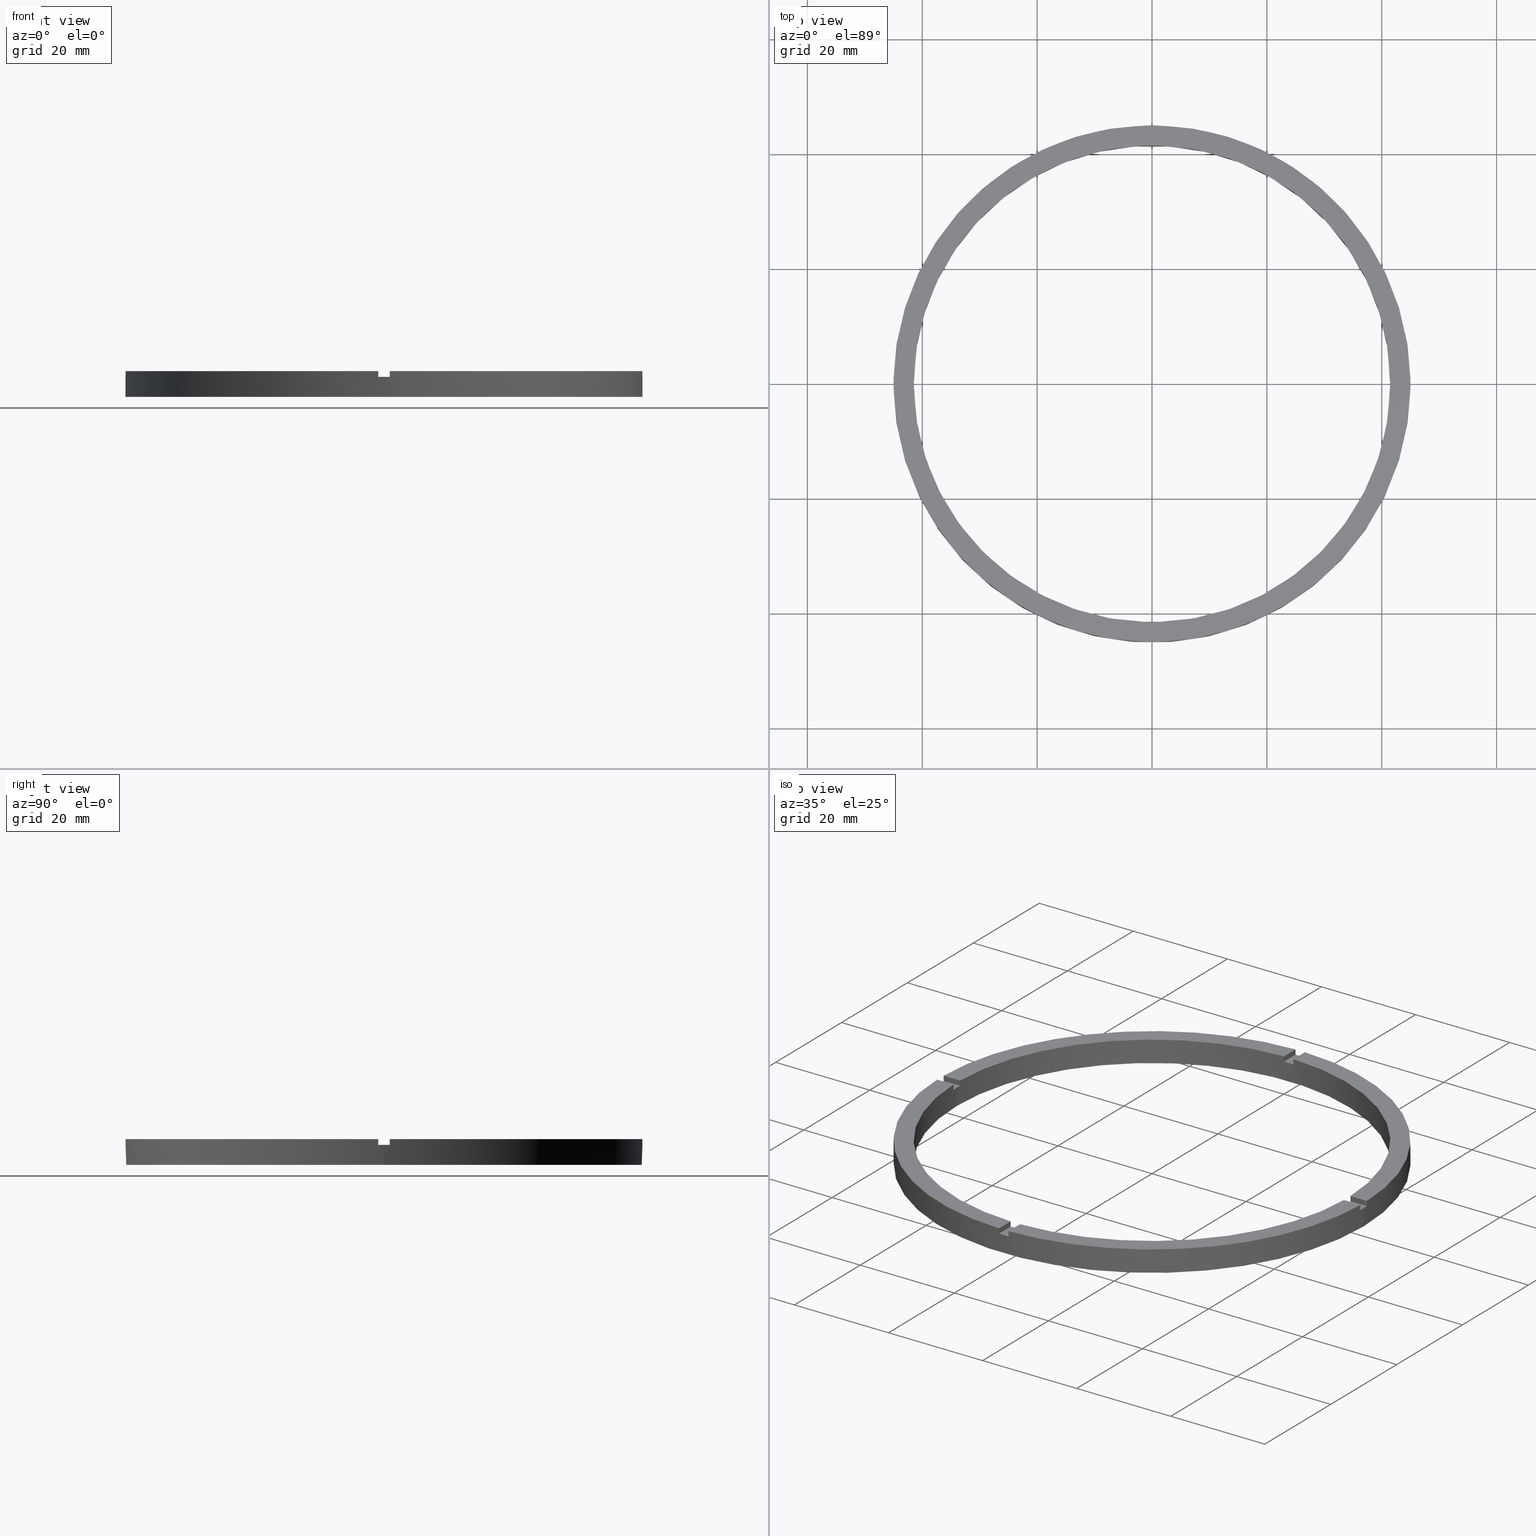
[diagram: canonical four-view strip — front | top / right | iso, engineering-drawing reading convention]
A machine part, canonical four-view strip (front | top / right | iso — engineering-drawing reading convention). The complete STEP part file that produces these views, byte-faithful:
ISO-10303-21;
HEADER;
FILE_DESCRIPTION (( 'STEP AP203' ),
    '1' );
FILE_NAME ('514185.step',
    '2024-12-26T02:45:52',
    ( 'MSI' ),
    ( '' ),
    'SwSTEP 2.0',
    'SolidWorks 2020',
    '' );
FILE_SCHEMA (( 'CONFIG_CONTROL_DESIGN' ));
ENDSEC;

DATA;
#1 = DIRECTION ( 'NONE',  ( 0.000000000000000000, 0.000000000000000000, 1.000000000000000000 ) ) ;
#2 = VECTOR ( 'NONE', #345, 1000.000000000000000 ) ;
#3 = CARTESIAN_POINT ( 'NONE',  ( 34.99999999999999289, 0.9999999999998432365, 3.499999999999999556 ) ) ;
#4 = VECTOR ( 'NONE', #169, 1000.000000000000000 ) ;
#5 = PRODUCT_DEFINITION_FORMATION_WITH_SPECIFIED_SOURCE ( '�κ�', '', #341, .NOT_KNOWN. ) ;
#6 = AXIS2_PLACEMENT_3D ( 'NONE', #40, #591, #525 ) ;
#7 = DIRECTION ( 'NONE',  ( 0.000000000000000000, 0.000000000000000000, 1.000000000000000000 ) ) ;
#8 = VECTOR ( 'NONE', #59, 1000.000000000000000 ) ;
#9 = DIRECTION ( 'NONE',  ( 0.000000000000000000, 0.000000000000000000, 1.000000000000000000 ) ) ;
#10 = VECTOR ( 'NONE', #347, 1000.000000000000000 ) ;
#11 = DESIGN_CONTEXT ( 'detailed design', #247, 'design' ) ;
#12 = LINE ( 'NONE', #255, #293 ) ;
#13 = CARTESIAN_POINT ( 'NONE',  ( 0.9999999999998406830, -35.00000000000018474, 3.499999999999999556 ) ) ;
#14 = PERSON_AND_ORGANIZATION ( #421, #331 ) ;
#15 = APPROVAL_PERSON_ORGANIZATION ( #14, #655, #240 ) ;
#16 = CALENDAR_DATE ( 2024, 26, 12 ) ;
#17 = DIRECTION ( 'NONE',  ( -0.000000000000000000, -0.000000000000000000, -1.000000000000000000 ) ) ;
#18 = PRODUCT_DEFINITION_SHAPE ( 'NONE', 'NONE',  #187 ) ;
#19 = AXIS2_PLACEMENT_3D ( 'NONE', #534, #611, #769 ) ;
#20 = APPROVAL_DATE_TIME ( #565, #463 ) ;
#21 = CARTESIAN_POINT ( 'NONE',  ( 0.000000000000000000, 0.000000000000000000, 4.500000000000000000 ) ) ;
#22 = PERSON_AND_ORGANIZATION ( #421, #331 ) ;
#23 = DIRECTION ( 'NONE',  ( 1.000000000000000000, 6.505213034913025371E-17, 0.000000000000000000 ) ) ;
#24 = AXIS2_PLACEMENT_3D ( 'NONE', #52, #599, #83 ) ;
#25 = CARTESIAN_POINT ( 'NONE',  ( -41.48795005781799716, -1.000000000000029088, 4.500000000000000000 ) ) ;
#26 = DIRECTION ( 'NONE',  ( 1.000000000000000000, 0.000000000000000000, 0.000000000000000000 ) ) ;
#27 = EDGE_CURVE ( 'NONE', #653, #674, #391, .T. ) ;
#28 = LOCAL_TIME ( 10, 45, 52.00000000000000000, #559 ) ;
#29 = DATE_AND_TIME ( #567, #28 ) ;
#30 = ADVANCED_FACE ( 'NONE', ( #635 ), #119, .T. ) ;
#31 = AXIS2_PLACEMENT_3D ( 'NONE', #399, #744, #630 ) ;
#32 = EDGE_CURVE ( 'NONE', #206, #471, #109, .T. ) ;
#33 = CALENDAR_DATE ( 2024, 26, 12 ) ;
#34 = DIRECTION ( 'NONE',  ( 1.000000000000000000, 0.000000000000000000, -0.000000000000000000 ) ) ;
#35 = CARTESIAN_POINT ( 'NONE',  ( -41.48795005781799716, -1.000000000000029088, 3.499999999999999556 ) ) ;
#36 = PERSON_AND_ORGANIZATION ( #421, #331 ) ;
#37 = ADVANCED_FACE ( 'NONE', ( #113 ), #605, .T. ) ;
#38 = LOCAL_TIME ( 10, 45, 52.00000000000000000, #561 ) ;
#39 = FACE_OUTER_BOUND ( 'NONE', #494, .T. ) ;
#40 = CARTESIAN_POINT ( 'NONE',  ( 0.000000000000000000, 0.000000000000000000, 4.500000000000000000 ) ) ;
#41 = CARTESIAN_POINT ( 'NONE',  ( 0.000000000000000000, 0.000000000000000000, 4.500000000000000000 ) ) ;
#42 = APPROVAL_DATE_TIME ( #299, #655 ) ;
#43 = MECHANICAL_CONTEXT ( 'NONE', #677, 'mechanical' ) ;
#44 = EDGE_CURVE ( 'NONE', #484, #700, #634, .T. ) ;
#45 = AXIS2_PLACEMENT_3D ( 'NONE', #757, #221, #305 ) ;
#46 = PERSON_AND_ORGANIZATION_ROLE ( 'design_supplier' ) ;
#47 = CARTESIAN_POINT ( 'NONE',  ( -44.98888751680797071, 0.9999999999999703570, 4.500000000000000000 ) ) ;
#48 =( GEOMETRIC_REPRESENTATION_CONTEXT ( 3 ) GLOBAL_UNCERTAINTY_ASSIGNED_CONTEXT ( ( #606 ) ) GLOBAL_UNIT_ASSIGNED_CONTEXT ( ( #343, #304, #528 ) ) REPRESENTATION_CONTEXT ( 'NONE', 'WORKASPACE' ) );
#49 = CARTESIAN_POINT ( 'NONE',  ( 41.50000000000000000, 5.082284216461515748E-15, 0.000000000000000000 ) ) ;
#50 = DIRECTION ( 'NONE',  ( 0.000000000000000000, 0.000000000000000000, 1.000000000000000000 ) ) ;
#51 = CARTESIAN_POINT ( 'NONE',  ( 0.000000000000000000, 0.000000000000000000, 4.500000000000000000 ) ) ;
#52 = CARTESIAN_POINT ( 'NONE',  ( 0.000000000000000000, 0.000000000000000000, 0.000000000000000000 ) ) ;
#53 = EDGE_CURVE ( 'NONE', #481, #470, #385, .T. ) ;
#54 = CARTESIAN_POINT ( 'NONE',  ( 0.000000000000000000, 0.000000000000000000, 3.499999999999999556 ) ) ;
#55 = APPROVAL_PERSON_ORGANIZATION ( #333, #142, #540 ) ;
#56 = CARTESIAN_POINT ( 'NONE',  ( 0.000000000000000000, 0.000000000000000000, 4.500000000000000000 ) ) ;
#57 = DATE_AND_TIME ( #582, #580 ) ;
#58 = CARTESIAN_POINT ( 'NONE',  ( -1.000000000000159428, -35.00000000000018474, 3.499999999999999556 ) ) ;
#59 = DIRECTION ( 'NONE',  ( -0.000000000000000000, -0.000000000000000000, -1.000000000000000000 ) ) ;
#60 = EDGE_CURVE ( 'NONE', #186, #653, #117, .T. ) ;
#61 = DIRECTION ( 'NONE',  ( -0.000000000000000000, -0.000000000000000000, -1.000000000000000000 ) ) ;
#62 = CARTESIAN_POINT ( 'NONE',  ( -1.000000000000026201, 35.00000000000000000, 3.499999999999999556 ) ) ;
#63 = PLANE ( 'NONE',  #376 ) ;
#64 = DIRECTION ( 'NONE',  ( -1.000000000000000000, -1.951563910473907735E-16, 0.000000000000000000 ) ) ;
#65 = EDGE_CURVE ( 'NONE', #184, #417, #131, .T. ) ;
#66 = ADVANCED_FACE ( 'NONE', ( #652 ), #600, .T. ) ;
#67 = EDGE_CURVE ( 'NONE', #481, #445, #633, .T. ) ;
#68 = CARTESIAN_POINT ( 'NONE',  ( 0.000000000000000000, 0.000000000000000000, 3.499999999999999556 ) ) ;
#69 = ADVANCED_BREP_SHAPE_REPRESENTATION ( '514185', ( #354, #659 ), #48 ) ;
#70 = DIRECTION ( 'NONE',  ( 0.000000000000000000, 0.000000000000000000, 1.000000000000000000 ) ) ;
#71 = CC_DESIGN_PERSON_AND_ORGANIZATION_ASSIGNMENT ( #307, #133, ( #602 ) ) ;
#72 = EDGE_CURVE ( 'NONE', #375, #186, #664, .T. ) ;
#73 = PLANE ( 'NONE',  #498 ) ;
#74 = CARTESIAN_POINT ( 'NONE',  ( -1.000000000000158096, -44.98888751680797071, 4.500000000000000000 ) ) ;
#75 = DIRECTION ( 'NONE',  ( -0.000000000000000000, -0.000000000000000000, -1.000000000000000000 ) ) ;
#76 = DIRECTION ( 'NONE',  ( 0.000000000000000000, 0.000000000000000000, 1.000000000000000000 ) ) ;
#77 = EDGE_CURVE ( 'NONE', #733, #484, #153, .T. ) ;
#78 = CARTESIAN_POINT ( 'NONE',  ( 34.99999999999999289, 0.9999999999998432365, 3.499999999999999556 ) ) ;
#79 = DIRECTION ( 'NONE',  ( 0.000000000000000000, -0.000000000000000000, 1.000000000000000000 ) ) ;
#80 = CARTESIAN_POINT ( 'NONE',  ( 45.00000000000000711, 5.510910596163090344E-15, 4.500000000000000000 ) ) ;
#81 = DIRECTION ( 'NONE',  ( 1.000000000000000000, 0.000000000000000000, 0.000000000000000000 ) ) ;
#82 = EDGE_CURVE ( 'NONE', #438, #723, #150, .T. ) ;
#83 = DIRECTION ( 'NONE',  ( 1.000000000000000000, 0.000000000000000000, 0.000000000000000000 ) ) ;
#84 = PERSON_AND_ORGANIZATION_ROLE ( 'design_owner' ) ;
#85 = CARTESIAN_POINT ( 'NONE',  ( 0.9999999999999737987, 44.98888751680797071, 4.500000000000000000 ) ) ;
#86 = AXIS2_PLACEMENT_3D ( 'NONE', #78, #224, #340 ) ;
#87 = CARTESIAN_POINT ( 'NONE',  ( -1.000000000000158540, -41.48795005781799006, 4.500000000000000000 ) ) ;
#88 = AXIS2_PLACEMENT_3D ( 'NONE', #21, #70, #571 ) ;
#89 = EDGE_CURVE ( 'NONE', #707, #726, #382, .T. ) ;
#90 = DIRECTION ( 'NONE',  ( 1.000000000000000000, 0.000000000000000000, 0.000000000000000000 ) ) ;
#91 = CARTESIAN_POINT ( 'NONE',  ( 0.9999999999999737987, 44.98888751680797071, 4.500000000000000000 ) ) ;
#92 = ADVANCED_FACE ( 'NONE', ( #151 ), #409, .F. ) ;
#93 = DIRECTION ( 'NONE',  ( 0.000000000000000000, 0.000000000000000000, 1.000000000000000000 ) ) ;
#94 = CARTESIAN_POINT ( 'NONE',  ( -1.000000000000026201, 41.48795005781799716, 3.499999999999999556 ) ) ;
#95 = PLANE ( 'NONE',  #110 ) ;
#96 = DIRECTION ( 'NONE',  ( 1.000000000000000000, 0.000000000000000000, 0.000000000000000000 ) ) ;
#97 = DIRECTION ( 'NONE',  ( 0.000000000000000000, 0.000000000000000000, 1.000000000000000000 ) ) ;
#98 = DIRECTION ( 'NONE',  ( -0.000000000000000000, 0.000000000000000000, 1.000000000000000000 ) ) ;
#99 = ADVANCED_FACE ( 'NONE', ( #415 ), #668, .T. ) ;
#100 = EDGE_LOOP ( 'NONE', ( #721, #241, #496, #741 ) ) ;
#101 = DIRECTION ( 'NONE',  ( -0.000000000000000000, -0.000000000000000000, -1.000000000000000000 ) ) ;
#102 = CARTESIAN_POINT ( 'NONE',  ( 0.9999999999999737987, 35.00000000000000000, 4.500000000000000000 ) ) ;
#103 = DIRECTION ( 'NONE',  ( 1.000000000000000000, 0.000000000000000000, 0.000000000000000000 ) ) ;
#104 = CARTESIAN_POINT ( 'NONE',  ( 0.000000000000000000, 0.000000000000000000, 3.499999999999999556 ) ) ;
#105 = EDGE_LOOP ( 'NONE', ( #183, #728, #439, #619, #121, #640, #226, #450, #379, #377, #708, #389 ) ) ;
#106 = CARTESIAN_POINT ( 'NONE',  ( 0.000000000000000000, 0.000000000000000000, 3.499999999999999556 ) ) ;
#107 = CC_DESIGN_PERSON_AND_ORGANIZATION_ASSIGNMENT ( #330, #589, ( #187 ) ) ;
#108 = DIRECTION ( 'NONE',  ( -1.301042606982605074E-16, 1.000000000000000000, -0.000000000000000000 ) ) ;
#109 = LINE ( 'NONE', #3, #380 ) ;
#110 = AXIS2_PLACEMENT_3D ( 'NONE', #41, #637, #322 ) ;
#111 = CIRCLE ( 'NONE', #515, 41.50000000000000000 ) ;
#112 = LINE ( 'NONE', #468, #646 ) ;
#113 = FACE_OUTER_BOUND ( 'NONE', #731, .T. ) ;
#114 = EDGE_CURVE ( 'NONE', #653, #739, #152, .T. ) ;
#115 = DIRECTION ( 'NONE',  ( -1.000000000000000000, -6.505213034913025371E-17, -0.000000000000000000 ) ) ;
#116 = EDGE_CURVE ( 'NONE', #674, #160, #396, .T. ) ;
#117 = CIRCLE ( 'NONE', #596, 45.00000000000000711 ) ;
#118 = VECTOR ( 'NONE', #61, 1000.000000000000000 ) ;
#119 = CYLINDRICAL_SURFACE ( 'NONE', #411, 45.00000000000000711 ) ;
#120 = CARTESIAN_POINT ( 'NONE',  ( 0.9999999999998419042, -44.98888751680797782, 3.499999999999999556 ) ) ;
#121 = ORIENTED_EDGE ( 'NONE', *, *, #334, .T. ) ;
#122 = CARTESIAN_POINT ( 'NONE',  ( 0.9999999999999737987, 44.98888751680797071, 3.499999999999999556 ) ) ;
#123 = CARTESIAN_POINT ( 'NONE',  ( 0.000000000000000000, 0.000000000000000000, 3.499999999999999556 ) ) ;
#124 = CC_DESIGN_PERSON_AND_ORGANIZATION_ASSIGNMENT ( #36, #748, ( #5 ) ) ;
#125 = AXIS2_PLACEMENT_3D ( 'NONE', #598, #1, #103 ) ;
#126 = ORIENTED_EDGE ( 'NONE', *, *, #53, .F. ) ;
#127 = PLANE ( 'NONE',  #709 ) ;
#128 = EDGE_LOOP ( 'NONE', ( #676, #682, #492, #423 ) ) ;
#129 = ADVANCED_FACE ( 'NONE', ( #628 ), #645, .T. ) ;
#130 = DIRECTION ( 'NONE',  ( 0.000000000000000000, 0.000000000000000000, 1.000000000000000000 ) ) ;
#131 = LINE ( 'NONE', #562, #651 ) ;
#132 = LINE ( 'NONE', #80, #649 ) ;
#133 = PERSON_AND_ORGANIZATION_ROLE ( 'classification_officer' ) ;
#134 = CARTESIAN_POINT ( 'NONE',  ( 0.000000000000000000, 0.000000000000000000, 3.499999999999999556 ) ) ;
#135 = EDGE_CURVE ( 'NONE', #184, #742, #631, .T. ) ;
#136 = CARTESIAN_POINT ( 'NONE',  ( 44.98888751680797071, -1.000000000000156097, 4.500000000000000000 ) ) ;
#137 = VECTOR ( 'NONE', #688, 1000.000000000000000 ) ;
#138 = CARTESIAN_POINT ( 'NONE',  ( -44.98888751680797071, -1.000000000000029754, 3.499999999999999556 ) ) ;
#139 = CARTESIAN_POINT ( 'NONE',  ( -44.98888751680797071, -1.000000000000029754, 4.500000000000000000 ) ) ;
#140 = ORIENTED_EDGE ( 'NONE', *, *, #583, .T. ) ;
#141 = VECTOR ( 'NONE', #64, 1000.000000000000000 ) ;
#142 = APPROVAL ( #462, 'δָ��' ) ;
#143 = VECTOR ( 'NONE', #604, 1000.000000000000000 ) ;
#144 = CARTESIAN_POINT ( 'NONE',  ( -1.000000000000026201, 41.48795005781799716, 4.500000000000000000 ) ) ;
#145 = VECTOR ( 'NONE', #374, 1000.000000000000000 ) ;
#146 = CARTESIAN_POINT ( 'NONE',  ( 0.000000000000000000, 0.000000000000000000, 4.500000000000000000 ) ) ;
#147 = AXIS2_PLACEMENT_3D ( 'NONE', #594, #531, #314 ) ;
#148 = ORIENTED_EDGE ( 'NONE', *, *, #782, .F. ) ;
#149 = DIRECTION ( 'NONE',  ( 1.000000000000000000, 6.505213034913025371E-17, 0.000000000000000000 ) ) ;
#150 = LINE ( 'NONE', #578, #654 ) ;
#151 = FACE_OUTER_BOUND ( 'NONE', #193, .T. ) ;
#152 = LINE ( 'NONE', #388, #137 ) ;
#153 = CIRCLE ( 'NONE', #464, 41.50000000000000000 ) ;
#154 = DIRECTION ( 'NONE',  ( -0.000000000000000000, -0.000000000000000000, -1.000000000000000000 ) ) ;
#155 = DIRECTION ( 'NONE',  ( -0.000000000000000000, -1.000000000000000000, -0.000000000000000000 ) ) ;
#156 = DIRECTION ( 'NONE',  ( 1.000000000000000000, 0.000000000000000000, 0.000000000000000000 ) ) ;
#157 = ORIENTED_EDGE ( 'NONE', *, *, #513, .F. ) ;
#158 = EDGE_CURVE ( 'NONE', #211, #712, #111, .T. ) ;
#159 = EDGE_CURVE ( 'NONE', #470, #239, #400, .T. ) ;
#160 = VERTEX_POINT ( 'NONE', #35 ) ;
#161 = CARTESIAN_POINT ( 'NONE',  ( 0.9999999999998414602, -41.48795005781800427, 4.500000000000000000 ) ) ;
#162 = PLANE ( 'NONE',  #603 ) ;
#163 = ORIENTED_EDGE ( 'NONE', *, *, #393, .F. ) ;
#164 = CARTESIAN_POINT ( 'NONE',  ( -41.48795005781799716, 0.9999999999999709122, 4.500000000000000000 ) ) ;
#165 = ORIENTED_EDGE ( 'NONE', *, *, #414, .F. ) ;
#166 = CIRCLE ( 'NONE', #310, 45.00000000000000711 ) ;
#167 = VERTEX_POINT ( 'NONE', #308 ) ;
#168 = DIRECTION ( 'NONE',  ( 1.000000000000000000, 0.000000000000000000, -0.000000000000000000 ) ) ;
#169 = DIRECTION ( 'NONE',  ( -1.000000000000000000, -1.951563910473907735E-16, 0.000000000000000000 ) ) ;
#170 = AXIS2_PLACEMENT_3D ( 'NONE', #51, #574, #500 ) ;
#171 = ORIENTED_EDGE ( 'NONE', *, *, #614, .T. ) ;
#172 = ORIENTED_EDGE ( 'NONE', *, *, #361, .F. ) ;
#173 = CARTESIAN_POINT ( 'NONE',  ( 34.99999999999999289, -1.000000000000156763, 4.500000000000000000 ) ) ;
#174 = VECTOR ( 'NONE', #289, 1000.000000000000000 ) ;
#175 = ORIENTED_EDGE ( 'NONE', *, *, #569, .T. ) ;
#176 = CARTESIAN_POINT ( 'NONE',  ( 0.000000000000000000, 0.000000000000000000, 3.499999999999999556 ) ) ;
#177 = ORIENTED_EDGE ( 'NONE', *, *, #352, .T. ) ;
#178 = LINE ( 'NONE', #136, #174 ) ;
#179 = ORIENTED_EDGE ( 'NONE', *, *, #65, .T. ) ;
#180 = EDGE_LOOP ( 'NONE', ( #230, #140, #486, #148 ) ) ;
#181 = ORIENTED_EDGE ( 'NONE', *, *, #275, .T. ) ;
#182 = EDGE_CURVE ( 'NONE', #438, #238, #112, .T. ) ;
#183 = ORIENTED_EDGE ( 'NONE', *, *, #77, .T. ) ;
#184 = VERTEX_POINT ( 'NONE', #444 ) ;
#185 = CARTESIAN_POINT ( 'NONE',  ( 0.000000000000000000, 0.000000000000000000, 4.500000000000000000 ) ) ;
#186 = VERTEX_POINT ( 'NONE', #302 ) ;
#187 = PRODUCT_DEFINITION ( 'δ֪', '', #5, #11 ) ;
#188 = DIRECTION ( 'NONE',  ( 1.951563910473907735E-16, -1.000000000000000000, 0.000000000000000000 ) ) ;
#189 = ORIENTED_EDGE ( 'NONE', *, *, #60, .F. ) ;
#190 = EDGE_LOOP ( 'NONE', ( #223, #478, #695, #449 ) ) ;
#191 = EDGE_LOOP ( 'NONE', ( #163, #204, #248, #237 ) ) ;
#192 = ORIENTED_EDGE ( 'NONE', *, *, #159, .F. ) ;
#193 = EDGE_LOOP ( 'NONE', ( #446, #403, #660, #459, #491, #233, #157, #395, #476, #472, #719, #650 ) ) ;
#194 = ORIENTED_EDGE ( 'NONE', *, *, #647, .F. ) ;
#195 = CARTESIAN_POINT ( 'NONE',  ( 41.50000000000000000, 5.082284216461515748E-15, 4.500000000000000000 ) ) ;
#196 = LINE ( 'NONE', #703, #214 ) ;
#197 = ORIENTED_EDGE ( 'NONE', *, *, #264, .T. ) ;
#198 = ORIENTED_EDGE ( 'NONE', *, *, #524, .F. ) ;
#199 = ORIENTED_EDGE ( 'NONE', *, *, #203, .T. ) ;
#200 = ORIENTED_EDGE ( 'NONE', *, *, #114, .T. ) ;
#201 = CIRCLE ( 'NONE', #339, 45.00000000000000711 ) ;
#202 = ORIENTED_EDGE ( 'NONE', *, *, #344, .T. ) ;
#203 = EDGE_CURVE ( 'NONE', #236, #648, #132, .T. ) ;
#204 = ORIENTED_EDGE ( 'NONE', *, *, #590, .F. ) ;
#205 = VECTOR ( 'NONE', #479, 1000.000000000000000 ) ;
#206 = VERTEX_POINT ( 'NONE', #767 ) ;
#207 = ORIENTED_EDGE ( 'NONE', *, *, #243, .T. ) ;
#208 = CIRCLE ( 'NONE', #125, 41.50000000000000000 ) ;
#209 = ORIENTED_EDGE ( 'NONE', *, *, #334, .F. ) ;
#210 = ORIENTED_EDGE ( 'NONE', *, *, #67, .T. ) ;
#211 = VERTEX_POINT ( 'NONE', #431 ) ;
#212 = CARTESIAN_POINT ( 'NONE',  ( 0.9999999999998406830, -35.00000000000018474, 3.499999999999999556 ) ) ;
#213 = ORIENTED_EDGE ( 'NONE', *, *, #243, .F. ) ;
#214 = VECTOR ( 'NONE', #404, 1000.000000000000000 ) ;
#215 = ORIENTED_EDGE ( 'NONE', *, *, #292, .F. ) ;
#216 = ORIENTED_EDGE ( 'NONE', *, *, #82, .T. ) ;
#217 = AXIS2_PLACEMENT_3D ( 'NONE', #716, #9, #592 ) ;
#218 = VECTOR ( 'NONE', #714, 1000.000000000000000 ) ;
#219 = ORIENTED_EDGE ( 'NONE', *, *, #60, .T. ) ;
#220 = ORIENTED_EDGE ( 'NONE', *, *, #555, .F. ) ;
#221 = DIRECTION ( 'NONE',  ( -0.000000000000000000, -0.000000000000000000, -1.000000000000000000 ) ) ;
#222 = VERTEX_POINT ( 'NONE', #47 ) ;
#223 = ORIENTED_EDGE ( 'NONE', *, *, #555, .T. ) ;
#224 = DIRECTION ( 'NONE',  ( -6.505213034913025371E-17, 1.000000000000000000, 0.000000000000000000 ) ) ;
#225 = DIRECTION ( 'NONE',  ( 1.000000000000000000, 1.301042606982605074E-16, 0.000000000000000000 ) ) ;
#226 = ORIENTED_EDGE ( 'NONE', *, *, #656, .T. ) ;
#227 = EDGE_CURVE ( 'NONE', #685, #742, #178, .T. ) ;
#228 = ORIENTED_EDGE ( 'NONE', *, *, #32, .F. ) ;
#229 = ORIENTED_EDGE ( 'NONE', *, *, #275, .F. ) ;
#230 = ORIENTED_EDGE ( 'NONE', *, *, #282, .T. ) ;
#231 = ORIENTED_EDGE ( 'NONE', *, *, #227, .F. ) ;
#232 = DIRECTION ( 'NONE',  ( -1.000000000000000000, 0.000000000000000000, 0.000000000000000000 ) ) ;
#233 = ORIENTED_EDGE ( 'NONE', *, *, #370, .T. ) ;
#234 = CARTESIAN_POINT ( 'NONE',  ( 41.48795005781800427, 0.9999999999998436806, 4.500000000000000000 ) ) ;
#235 = EDGE_LOOP ( 'NONE', ( #480, #437, #175, #194 ) ) ;
#236 = VERTEX_POINT ( 'NONE', #530 ) ;
#237 = ORIENTED_EDGE ( 'NONE', *, *, #135, .T. ) ;
#238 = VERTEX_POINT ( 'NONE', #144 ) ;
#239 = VERTEX_POINT ( 'NONE', #85 ) ;
#240 = APPROVAL_ROLE ( '' ) ;
#241 = ORIENTED_EDGE ( 'NONE', *, *, #656, .F. ) ;
#242 = CC_DESIGN_SECURITY_CLASSIFICATION ( #602, ( #5 ) ) ;
#243 = EDGE_CURVE ( 'NONE', #733, #685, #419, .T. ) ;
#244 = EDGE_LOOP ( 'NONE', ( #213, #435, #418, #231 ) ) ;
#245 = DIRECTION ( 'NONE',  ( 0.000000000000000000, 0.000000000000000000, 1.000000000000000000 ) ) ;
#246 = ORIENTED_EDGE ( 'NONE', *, *, #65, .F. ) ;
#247 = APPLICATION_CONTEXT ( 'configuration controlled 3d designs of mechanical parts and assemblies' ) ;
#248 = ORIENTED_EDGE ( 'NONE', *, *, #629, .F. ) ;
#249 = AXIS2_PLACEMENT_3D ( 'NONE', #54, #93, #156 ) ;
#250 = CARTESIAN_POINT ( 'NONE',  ( -1.000000000000158096, -44.98888751680797071, 3.499999999999999556 ) ) ;
#251 = CARTESIAN_POINT ( 'NONE',  ( 0.9999999999998414602, -41.48795005781800427, 3.499999999999999556 ) ) ;
#252 = VERTEX_POINT ( 'NONE', #250 ) ;
#253 = CARTESIAN_POINT ( 'NONE',  ( 0.000000000000000000, 0.000000000000000000, 3.499999999999999556 ) ) ;
#254 = DIRECTION ( 'NONE',  ( 0.000000000000000000, 0.000000000000000000, 1.000000000000000000 ) ) ;
#255 = CARTESIAN_POINT ( 'NONE',  ( -44.98888751680797071, 0.9999999999999703570, 4.500000000000000000 ) ) ;
#256 = CARTESIAN_POINT ( 'NONE',  ( 0.000000000000000000, 0.000000000000000000, 0.000000000000000000 ) ) ;
#257 = CARTESIAN_POINT ( 'NONE',  ( 41.50000000000000000, 5.082284216461515748E-15, 3.499999999999999556 ) ) ;
#258 = LINE ( 'NONE', #268, #4 ) ;
#259 = AXIS2_PLACEMENT_3D ( 'NONE', #253, #79, #325 ) ;
#260 = CARTESIAN_POINT ( 'NONE',  ( 45.00000000000000711, 5.510910596163090344E-15, 0.000000000000000000 ) ) ;
#261 = CIRCLE ( 'NONE', #775, 41.50000000000000000 ) ;
#262 = FACE_OUTER_BOUND ( 'NONE', #428, .T. ) ;
#263 = LINE ( 'NONE', #74, #766 ) ;
#264 = EDGE_CURVE ( 'NONE', #697, #239, #693, .T. ) ;
#265 = DIRECTION ( 'NONE',  ( 0.000000000000000000, -0.000000000000000000, 1.000000000000000000 ) ) ;
#266 = CARTESIAN_POINT ( 'NONE',  ( 0.000000000000000000, 0.000000000000000000, 3.499999999999999556 ) ) ;
#267 = CIRCLE ( 'NONE', #532, 45.00000000000000711 ) ;
#268 = CARTESIAN_POINT ( 'NONE',  ( -35.00000000000019185, 0.9999999999999720224, 4.500000000000000000 ) ) ;
#269 = CARTESIAN_POINT ( 'NONE',  ( 0.9999999999999737987, 35.00000000000000000, 3.499999999999999556 ) ) ;
#270 = CIRCLE ( 'NONE', #31, 41.50000000000000000 ) ;
#271 = DIRECTION ( 'NONE',  ( 0.000000000000000000, 0.000000000000000000, 1.000000000000000000 ) ) ;
#272 = VECTOR ( 'NONE', #506, 1000.000000000000000 ) ;
#273 = AXIS2_PLACEMENT_3D ( 'NONE', #405, #97, #168 ) ;
#274 = CIRCLE ( 'NONE', #259, 45.00000000000000711 ) ;
#275 = EDGE_CURVE ( 'NONE', #685, #236, #166, .T. ) ;
#276 = CARTESIAN_POINT ( 'NONE',  ( -41.48795005781799716, 0.9999999999999709122, 4.500000000000000000 ) ) ;
#277 = LINE ( 'NONE', #447, #526 ) ;
#278 = LINE ( 'NONE', #675, #529 ) ;
#279 = LINE ( 'NONE', #610, #779 ) ;
#280 = DIRECTION ( 'NONE',  ( 1.000000000000000000, 1.951563910473907735E-16, 0.000000000000000000 ) ) ;
#281 = CC_DESIGN_APPROVAL ( #655, ( #602 ) ) ;
#282 = EDGE_CURVE ( 'NONE', #747, #477, #432, .T. ) ;
#283 = CIRCLE ( 'NONE', #734, 45.00000000000000711 ) ;
#284 = LINE ( 'NONE', #161, #2 ) ;
#285 = FACE_OUTER_BOUND ( 'NONE', #128, .T. ) ;
#286 = AXIS2_PLACEMENT_3D ( 'NONE', #473, #691, #546 ) ;
#287 = CIRCLE ( 'NONE', #300, 45.00000000000000711 ) ;
#288 = CIRCLE ( 'NONE', #612, 41.50000000000000000 ) ;
#289 = DIRECTION ( 'NONE',  ( 0.000000000000000000, 0.000000000000000000, 1.000000000000000000 ) ) ;
#290 = CYLINDRICAL_SURFACE ( 'NONE', #147, 41.50000000000000000 ) ;
#291 = FACE_OUTER_BOUND ( 'NONE', #105, .T. ) ;
#292 = EDGE_CURVE ( 'NONE', #484, #471, #689, .T. ) ;
#293 = VECTOR ( 'NONE', #306, 1000.000000000000000 ) ;
#294 = CARTESIAN_POINT ( 'NONE',  ( 0.000000000000000000, 0.000000000000000000, 0.000000000000000000 ) ) ;
#295 = CC_DESIGN_DATE_AND_TIME_ASSIGNMENT ( #550, #516, ( #187 ) ) ;
#296 = COORDINATED_UNIVERSAL_TIME_OFFSET ( 8, 0, .AHEAD. ) ;
#297 = CARTESIAN_POINT ( 'NONE',  ( -1.000000000000026201, 44.98888751680797071, 4.500000000000000000 ) ) ;
#298 = DIRECTION ( 'NONE',  ( -1.301042606982605074E-16, 1.000000000000000000, 0.000000000000000000 ) ) ;
#299 = DATE_AND_TIME ( #16, #547 ) ;
#300 = AXIS2_PLACEMENT_3D ( 'NONE', #318, #420, #371 ) ;
#301 = APPROVAL_STATUS ( 'not_yet_approved' ) ;
#302 = CARTESIAN_POINT ( 'NONE',  ( -44.98888751680797071, 0.9999999999999703570, 3.499999999999999556 ) ) ;
#303 = AXIS2_PLACEMENT_3D ( 'NONE', #185, #363, #504 ) ;
#304 =( NAMED_UNIT ( * ) PLANE_ANGLE_UNIT ( ) SI_UNIT ( $, .RADIAN. ) );
#305 = DIRECTION ( 'NONE',  ( -1.000000000000000000, 0.000000000000000000, 0.000000000000000000 ) ) ;
#306 = DIRECTION ( 'NONE',  ( 0.000000000000000000, 0.000000000000000000, 1.000000000000000000 ) ) ;
#307 = PERSON_AND_ORGANIZATION ( #421, #331 ) ;
#308 = CARTESIAN_POINT ( 'NONE',  ( 0.9999999999998414602, -41.48795005781800427, 4.500000000000000000 ) ) ;
#309 = COORDINATED_UNIVERSAL_TIME_OFFSET ( 8, 0, .AHEAD. ) ;
#310 = AXIS2_PLACEMENT_3D ( 'NONE', #266, #601, #326 ) ;
#311 = CARTESIAN_POINT ( 'NONE',  ( -45.00000000000000711, 0.000000000000000000, 0.000000000000000000 ) ) ;
#312 = DIRECTION ( 'NONE',  ( 0.000000000000000000, 0.000000000000000000, 1.000000000000000000 ) ) ;
#313 = DIRECTION ( 'NONE',  ( 1.000000000000000000, 0.000000000000000000, 0.000000000000000000 ) ) ;
#314 = DIRECTION ( 'NONE',  ( -1.000000000000000000, 0.000000000000000000, 0.000000000000000000 ) ) ;
#315 = APPROVAL_PERSON_ORGANIZATION ( #552, #463, #609 ) ;
#316 = DIRECTION ( 'NONE',  ( 1.000000000000000000, 0.000000000000000000, 0.000000000000000000 ) ) ;
#317 = EDGE_CURVE ( 'NONE', #723, #469, #467, .T. ) ;
#318 = CARTESIAN_POINT ( 'NONE',  ( 0.000000000000000000, 0.000000000000000000, 4.500000000000000000 ) ) ;
#319 = PLANE ( 'NONE',  #273 ) ;
#320 = SHAPE_DEFINITION_REPRESENTATION ( #18, #69 ) ;
#321 = CIRCLE ( 'NONE', #366, 45.00000000000000711 ) ;
#322 = DIRECTION ( 'NONE',  ( 1.000000000000000000, 0.000000000000000000, -0.000000000000000000 ) ) ;
#323 = CC_DESIGN_APPROVAL ( #142, ( #187 ) ) ;
#324 = DIRECTION ( 'NONE',  ( 0.000000000000000000, 0.000000000000000000, 1.000000000000000000 ) ) ;
#325 = DIRECTION ( 'NONE',  ( 1.000000000000000000, 0.000000000000000000, 0.000000000000000000 ) ) ;
#326 = DIRECTION ( 'NONE',  ( 1.000000000000000000, 0.000000000000000000, 0.000000000000000000 ) ) ;
#327 = DIRECTION ( 'NONE',  ( 1.000000000000000000, 0.000000000000000000, 0.000000000000000000 ) ) ;
#328 = VECTOR ( 'NONE', #75, 1000.000000000000000 ) ;
#329 = CARTESIAN_POINT ( 'NONE',  ( 41.48795005781799006, -1.000000000000156319, 4.500000000000000000 ) ) ;
#330 = PERSON_AND_ORGANIZATION ( #421, #331 ) ;
#331 = ORGANIZATION ( 'δָ��', 'δָ��', '' ) ;
#332 = EDGE_CURVE ( 'NONE', #438, #222, #201, .T. ) ;
#333 = PERSON_AND_ORGANIZATION ( #421, #331 ) ;
#334 = EDGE_CURVE ( 'NONE', #698, #160, #208, .T. ) ;
#335 = COORDINATED_UNIVERSAL_TIME_OFFSET ( 8, 0, .AHEAD. ) ;
#336 = PLANE ( 'NONE',  #684 ) ;
#337 = CARTESIAN_POINT ( 'NONE',  ( 0.000000000000000000, 0.000000000000000000, 0.000000000000000000 ) ) ;
#338 = ADVANCED_FACE ( 'NONE', ( #720 ), #162, .F. ) ;
#339 = AXIS2_PLACEMENT_3D ( 'NONE', #553, #254, #313 ) ;
#340 = DIRECTION ( 'NONE',  ( -1.000000000000000000, -6.505213034913025371E-17, 0.000000000000000000 ) ) ;
#341 = PRODUCT ( '514185', '514185', '', ( #43 ) ) ;
#342 = ADVANCED_FACE ( 'NONE', ( #451, #718 ), #319, .F. ) ;
#343 =( LENGTH_UNIT ( ) NAMED_UNIT ( * ) SI_UNIT ( .MILLI., .METRE. ) );
#344 = EDGE_CURVE ( 'NONE', #211, #707, #196, .T. ) ;
#345 = DIRECTION ( 'NONE',  ( -0.000000000000000000, -0.000000000000000000, -1.000000000000000000 ) ) ;
#346 = CARTESIAN_POINT ( 'NONE',  ( -35.00000000000019185, -1.000000000000027978, 3.499999999999999556 ) ) ;
#347 = DIRECTION ( 'NONE',  ( -0.000000000000000000, -0.000000000000000000, -1.000000000000000000 ) ) ;
#348 = AXIS2_PLACEMENT_3D ( 'NONE', #146, #358, #493 ) ;
#349 = DIRECTION ( 'NONE',  ( -0.000000000000000000, 0.000000000000000000, 1.000000000000000000 ) ) ;
#350 = CARTESIAN_POINT ( 'NONE',  ( 44.98888751680797071, -1.000000000000156097, 3.499999999999999556 ) ) ;
#351 = APPLICATION_PROTOCOL_DEFINITION ( 'international standard', 'config_control_design', 1994, #247 ) ;
#352 = EDGE_CURVE ( 'NONE', #445, #239, #455, .T. ) ;
#353 = CARTESIAN_POINT ( 'NONE',  ( 44.98888751680797071, -1.000000000000156097, 4.500000000000000000 ) ) ;
#354 = MANIFOLD_SOLID_BREP ( '�г�-����1', #433 ) ;
#355 = CARTESIAN_POINT ( 'NONE',  ( -35.00000000000019185, 0.9999999999999720224, 3.499999999999999556 ) ) ;
#356 = CARTESIAN_POINT ( 'NONE',  ( -1.000000000000158096, -44.98888751680797071, 4.500000000000000000 ) ) ;
#357 = DIRECTION ( 'NONE',  ( 1.000000000000000000, 1.951563910473907735E-16, -0.000000000000000000 ) ) ;
#358 = DIRECTION ( 'NONE',  ( 0.000000000000000000, 0.000000000000000000, 1.000000000000000000 ) ) ;
#359 = DIRECTION ( 'NONE',  ( 1.000000000000000000, 0.000000000000000000, 0.000000000000000000 ) ) ;
#360 = CC_DESIGN_DATE_AND_TIME_ASSIGNMENT ( #29, #615, ( #602 ) ) ;
#361 = EDGE_CURVE ( 'NONE', #417, #712, #710, .T. ) ;
#362 = DIRECTION ( 'NONE',  ( 0.000000000000000000, 0.000000000000000000, 1.000000000000000000 ) ) ;
#363 = DIRECTION ( 'NONE',  ( 0.000000000000000000, 0.000000000000000000, 1.000000000000000000 ) ) ;
#364 = DIRECTION ( 'NONE',  ( 1.000000000000000000, 0.000000000000000000, 0.000000000000000000 ) ) ;
#365 = EDGE_CURVE ( 'NONE', #375, #671, #474, .T. ) ;
#366 = AXIS2_PLACEMENT_3D ( 'NONE', #595, #626, #316 ) ;
#367 = CARTESIAN_POINT ( 'NONE',  ( -41.48795005781799716, 0.9999999999999709122, 3.499999999999999556 ) ) ;
#368 = AXIS2_PLACEMENT_3D ( 'NONE', #56, #756, #34 ) ;
#369 = DIRECTION ( 'NONE',  ( 0.000000000000000000, 0.000000000000000000, 1.000000000000000000 ) ) ;
#370 = EDGE_CURVE ( 'NONE', #481, #469, #261, .T. ) ;
#371 = DIRECTION ( 'NONE',  ( 1.000000000000000000, 0.000000000000000000, 0.000000000000000000 ) ) ;
#372 = EDGE_LOOP ( 'NONE', ( #475, #427, #228, #501 ) ) ;
#373 = CARTESIAN_POINT ( 'NONE',  ( 41.48795005781800427, 0.9999999999998436806, 4.500000000000000000 ) ) ;
#374 = DIRECTION ( 'NONE',  ( 1.301042606982605074E-16, -1.000000000000000000, 0.000000000000000000 ) ) ;
#375 = VERTEX_POINT ( 'NONE', #367 ) ;
#376 = AXIS2_PLACEMENT_3D ( 'NONE', #104, #271, #642 ) ;
#377 = ORIENTED_EDGE ( 'NONE', *, *, #483, .F. ) ;
#378 = CARTESIAN_POINT ( 'NONE',  ( 0.9999999999999737987, 41.48795005781799716, 3.499999999999999556 ) ) ;
#379 = ORIENTED_EDGE ( 'NONE', *, *, #158, .T. ) ;
#380 = VECTOR ( 'NONE', #512, 1000.000000000000000 ) ;
#381 = VECTOR ( 'NONE', #621, 1000.000000000000000 ) ;
#382 = LINE ( 'NONE', #519, #145 ) ;
#383 = CARTESIAN_POINT ( 'NONE',  ( 0.000000000000000000, 0.000000000000000000, 3.499999999999999556 ) ) ;
#384 = DIRECTION ( 'NONE',  ( 1.000000000000000000, 0.000000000000000000, 0.000000000000000000 ) ) ;
#385 = LINE ( 'NONE', #269, #412 ) ;
#386 = EDGE_CURVE ( 'NONE', #733, #402, #763, .T. ) ;
#387 = ORIENTED_EDGE ( 'NONE', *, *, #114, .F. ) ;
#388 = CARTESIAN_POINT ( 'NONE',  ( -45.00000000000000711, 0.000000000000000000, 4.500000000000000000 ) ) ;
#389 = ORIENTED_EDGE ( 'NONE', *, *, #386, .F. ) ;
#390 = EDGE_LOOP ( 'NONE', ( #488, #680, #497, #679 ) ) ;
#391 = CIRCLE ( 'NONE', #750, 45.00000000000000711 ) ;
#392 = CARTESIAN_POINT ( 'NONE',  ( -1.000000000000026201, 44.98888751680797071, 3.499999999999999556 ) ) ;
#393 = EDGE_CURVE ( 'NONE', #402, #742, #535, .T. ) ;
#394 = DIRECTION ( 'NONE',  ( 1.000000000000000000, 0.000000000000000000, 0.000000000000000000 ) ) ;
#395 = ORIENTED_EDGE ( 'NONE', *, *, #440, .T. ) ;
#396 = LINE ( 'NONE', #346, #398 ) ;
#397 = ORIENTED_EDGE ( 'NONE', *, *, #548, .T. ) ;
#398 = VECTOR ( 'NONE', #587, 1000.000000000000000 ) ;
#399 = CARTESIAN_POINT ( 'NONE',  ( 0.000000000000000000, 0.000000000000000000, 4.500000000000000000 ) ) ;
#400 = LINE ( 'NONE', #91, #381 ) ;
#401 = DIRECTION ( 'NONE',  ( -1.000000000000000000, -1.951563910473907735E-16, 0.000000000000000000 ) ) ;
#402 = VERTEX_POINT ( 'NONE', #329 ) ;
#403 = ORIENTED_EDGE ( 'NONE', *, *, #292, .T. ) ;
#404 = DIRECTION ( 'NONE',  ( 0.000000000000000000, 0.000000000000000000, 1.000000000000000000 ) ) ;
#405 = CARTESIAN_POINT ( 'NONE',  ( 0.000000000000000000, 0.000000000000000000, 0.000000000000000000 ) ) ;
#406 = ORIENTED_EDGE ( 'NONE', *, *, #27, .F. ) ;
#407 = CARTESIAN_POINT ( 'NONE',  ( -45.00000000000000711, 0.000000000000000000, 3.499999999999999556 ) ) ;
#408 = ORIENTED_EDGE ( 'NONE', *, *, #203, .F. ) ;
#409 = CYLINDRICAL_SURFACE ( 'NONE', #737, 41.50000000000000000 ) ;
#410 = AXIS2_PLACEMENT_3D ( 'NONE', #355, #706, #401 ) ;
#411 = AXIS2_PLACEMENT_3D ( 'NONE', #507, #101, #729 ) ;
#412 = VECTOR ( 'NONE', #639, 1000.000000000000000 ) ;
#413 = PLANE ( 'NONE',  #636 ) ;
#414 = EDGE_CURVE ( 'NONE', #697, #454, #517, .T. ) ;
#415 = FACE_OUTER_BOUND ( 'NONE', #190, .T. ) ;
#416 = CARTESIAN_POINT ( 'NONE',  ( 41.48795005781799006, -1.000000000000156319, 4.500000000000000000 ) ) ;
#417 = VERTEX_POINT ( 'NONE', #120 ) ;
#418 = ORIENTED_EDGE ( 'NONE', *, *, #393, .T. ) ;
#419 = LINE ( 'NONE', #771, #686 ) ;
#420 = DIRECTION ( 'NONE',  ( 0.000000000000000000, 0.000000000000000000, 1.000000000000000000 ) ) ;
#421 = PERSON ( 'δָ��', 'δָ��', 'δָ��', ('δָ��'), ('δָ��'), ('δָ��') ) ;
#422 = ORIENTED_EDGE ( 'NONE', *, *, #758, .F. ) ;
#423 = ORIENTED_EDGE ( 'NONE', *, *, #82, .F. ) ;
#424 = CARTESIAN_POINT ( 'NONE',  ( 44.98888751680797782, 0.9999999999998439026, 4.500000000000000000 ) ) ;
#425 = EDGE_LOOP ( 'NONE', ( #683, #495 ) ) ;
#426 = ADVANCED_FACE ( 'NONE', ( #511 ), #73, .F. ) ;
#427 = ORIENTED_EDGE ( 'NONE', *, *, #678, .T. ) ;
#428 = EDGE_LOOP ( 'NONE', ( #687, #725, #165, #197 ) ) ;
#429 = CARTESIAN_POINT ( 'NONE',  ( -41.50000000000000000, 0.000000000000000000, 0.000000000000000000 ) ) ;
#430 = EDGE_CURVE ( 'NONE', #747, #726, #287, .T. ) ;
#431 = CARTESIAN_POINT ( 'NONE',  ( -1.000000000000158540, -41.48795005781799006, 3.499999999999999556 ) ) ;
#432 = LINE ( 'NONE', #704, #441 ) ;
#433 = CLOSED_SHELL ( 'NONE', ( #657, #30, #37, #458, #617, #66, #342, #129, #92, #426, #663, #586, #783, #338, #581, #434, #760, #518, #487, #781, #99 ) ) ;
#434 = ADVANCED_FACE ( 'NONE', ( #538 ), #755, .F. ) ;
#435 = ORIENTED_EDGE ( 'NONE', *, *, #386, .T. ) ;
#436 = DIRECTION ( 'NONE',  ( 1.000000000000000000, 0.000000000000000000, 0.000000000000000000 ) ) ;
#437 = ORIENTED_EDGE ( 'NONE', *, *, #365, .T. ) ;
#438 = VERTEX_POINT ( 'NONE', #297 ) ;
#439 = ORIENTED_EDGE ( 'NONE', *, *, #641, .F. ) ;
#440 = EDGE_CURVE ( 'NONE', #238, #671, #270, .T. ) ;
#441 = VECTOR ( 'NONE', #357, 1000.000000000000000 ) ;
#442 = ORIENTED_EDGE ( 'NONE', *, *, #569, .F. ) ;
#443 = DIRECTION ( 'NONE',  ( -1.000000000000000000, 0.000000000000000000, 0.000000000000000000 ) ) ;
#444 = CARTESIAN_POINT ( 'NONE',  ( 0.9999999999998419042, -44.98888751680797782, 4.500000000000000000 ) ) ;
#445 = VERTEX_POINT ( 'NONE', #523 ) ;
#446 = ORIENTED_EDGE ( 'NONE', *, *, #44, .F. ) ;
#447 = CARTESIAN_POINT ( 'NONE',  ( -1.000000000000159428, -35.00000000000018474, 3.499999999999999556 ) ) ;
#448 = VECTOR ( 'NONE', #362, 1000.000000000000000 ) ;
#449 = ORIENTED_EDGE ( 'NONE', *, *, #53, .T. ) ;
#450 = ORIENTED_EDGE ( 'NONE', *, *, #344, .F. ) ;
#451 = FACE_OUTER_BOUND ( 'NONE', #692, .T. ) ;
#452 = ORIENTED_EDGE ( 'NONE', *, *, #629, .T. ) ;
#453 = ORIENTED_EDGE ( 'NONE', *, *, #77, .F. ) ;
#454 = VERTEX_POINT ( 'NONE', #373 ) ;
#455 = LINE ( 'NONE', #102, #218 ) ;
#456 = DIRECTION ( 'NONE',  ( -0.000000000000000000, -0.000000000000000000, -1.000000000000000000 ) ) ;
#457 = ORIENTED_EDGE ( 'NONE', *, *, #614, .F. ) ;
#458 = ADVANCED_FACE ( 'NONE', ( #262 ), #667, .T. ) ;
#459 = ORIENTED_EDGE ( 'NONE', *, *, #597, .T. ) ;
#460 = CARTESIAN_POINT ( 'NONE',  ( 0.000000000000000000, 0.000000000000000000, 4.500000000000000000 ) ) ;
#461 = VECTOR ( 'NONE', #108, 1000.000000000000000 ) ;
#462 = APPROVAL_STATUS ( 'not_yet_approved' ) ;
#463 = APPROVAL ( #572, 'δָ��' ) ;
#464 = AXIS2_PLACEMENT_3D ( 'NONE', #106, #245, #436 ) ;
#465 = VERTEX_POINT ( 'NONE', #429 ) ;
#466 = ORIENTED_EDGE ( 'NONE', *, *, #647, .T. ) ;
#467 = LINE ( 'NONE', #62, #205 ) ;
#468 = CARTESIAN_POINT ( 'NONE',  ( -1.000000000000026201, 35.00000000000000000, 4.500000000000000000 ) ) ;
#469 = VERTEX_POINT ( 'NONE', #94 ) ;
#470 = VERTEX_POINT ( 'NONE', #122 ) ;
#471 = VERTEX_POINT ( 'NONE', #570 ) ;
#472 = ORIENTED_EDGE ( 'NONE', *, *, #778, .T. ) ;
#473 = CARTESIAN_POINT ( 'NONE',  ( 34.99999999999999289, -1.000000000000156763, 3.499999999999999556 ) ) ;
#474 = LINE ( 'NONE', #276, #448 ) ;
#475 = ORIENTED_EDGE ( 'NONE', *, *, #414, .T. ) ;
#476 = ORIENTED_EDGE ( 'NONE', *, *, #365, .F. ) ;
#477 = VERTEX_POINT ( 'NONE', #25 ) ;
#478 = ORIENTED_EDGE ( 'NONE', *, *, #317, .T. ) ;
#479 = DIRECTION ( 'NONE',  ( -0.000000000000000000, -1.000000000000000000, -0.000000000000000000 ) ) ;
#480 = ORIENTED_EDGE ( 'NONE', *, *, #72, .F. ) ;
#481 = VERTEX_POINT ( 'NONE', #378 ) ;
#482 = CARTESIAN_POINT ( 'NONE',  ( -41.50000000000000000, 0.000000000000000000, 4.500000000000000000 ) ) ;
#483 = EDGE_CURVE ( 'NONE', #167, #712, #284, .T. ) ;
#484 = VERTEX_POINT ( 'NONE', #257 ) ;
#485 = PLANE ( 'NONE',  #286 ) ;
#486 = ORIENTED_EDGE ( 'NONE', *, *, #116, .F. ) ;
#487 = ADVANCED_FACE ( 'NONE', ( #285 ), #336, .F. ) ;
#488 = ORIENTED_EDGE ( 'NONE', *, *, #758, .T. ) ;
#489 = ORIENTED_EDGE ( 'NONE', *, *, #430, .F. ) ;
#490 = EDGE_LOOP ( 'NONE', ( #219, #499, #713, #209, #743, #730 ) ) ;
#491 = ORIENTED_EDGE ( 'NONE', *, *, #67, .F. ) ;
#492 = ORIENTED_EDGE ( 'NONE', *, *, #317, .F. ) ;
#493 = DIRECTION ( 'NONE',  ( 1.000000000000000000, 0.000000000000000000, 0.000000000000000000 ) ) ;
#494 = EDGE_LOOP ( 'NONE', ( #126, #210, #177, #192 ) ) ;
#495 = ORIENTED_EDGE ( 'NONE', *, *, #753, .T. ) ;
#496 = ORIENTED_EDGE ( 'NONE', *, *, #282, .F. ) ;
#497 = ORIENTED_EDGE ( 'NONE', *, *, #158, .F. ) ;
#498 = AXIS2_PLACEMENT_3D ( 'NONE', #732, #188, #280 ) ;
#499 = ORIENTED_EDGE ( 'NONE', *, *, #27, .T. ) ;
#500 = DIRECTION ( 'NONE',  ( 1.000000000000000000, 0.000000000000000000, 0.000000000000000000 ) ) ;
#501 = ORIENTED_EDGE ( 'NONE', *, *, #503, .F. ) ;
#502 = CARTESIAN_POINT ( 'NONE',  ( -41.48795005781799716, -1.000000000000029088, 4.500000000000000000 ) ) ;
#503 = EDGE_CURVE ( 'NONE', #697, #206, #770, .T. ) ;
#504 = DIRECTION ( 'NONE',  ( 1.000000000000000000, 0.000000000000000000, -0.000000000000000000 ) ) ;
#505 = ORIENTED_EDGE ( 'NONE', *, *, #440, .F. ) ;
#506 = DIRECTION ( 'NONE',  ( -0.000000000000000000, -0.000000000000000000, -1.000000000000000000 ) ) ;
#507 = CARTESIAN_POINT ( 'NONE',  ( 0.000000000000000000, 0.000000000000000000, 4.500000000000000000 ) ) ;
#508 = CARTESIAN_POINT ( 'NONE',  ( 34.99999999999999289, 0.9999999999998432365, 4.500000000000000000 ) ) ;
#509 = FACE_OUTER_BOUND ( 'NONE', #390, .T. ) ;
#510 = FACE_OUTER_BOUND ( 'NONE', #727, .T. ) ;
#511 = FACE_OUTER_BOUND ( 'NONE', #180, .T. ) ;
#512 = DIRECTION ( 'NONE',  ( -1.000000000000000000, -6.505213034913025371E-17, -0.000000000000000000 ) ) ;
#513 = EDGE_CURVE ( 'NONE', #238, #469, #279, .T. ) ;
#514 = LINE ( 'NONE', #502, #272 ) ;
#515 = AXIS2_PLACEMENT_3D ( 'NONE', #383, #349, #81 ) ;
#516 = DATE_TIME_ROLE ( 'creation_date' ) ;
#517 = LINE ( 'NONE', #508, #520 ) ;
#518 = ADVANCED_FACE ( 'NONE', ( #510 ), #616, .T. ) ;
#519 = CARTESIAN_POINT ( 'NONE',  ( -1.000000000000159428, -35.00000000000018474, 4.500000000000000000 ) ) ;
#520 = VECTOR ( 'NONE', #115, 1000.000000000000000 ) ;
#521 = FACE_OUTER_BOUND ( 'NONE', #490, .T. ) ;
#522 = VECTOR ( 'NONE', #154, 1000.000000000000000 ) ;
#523 = CARTESIAN_POINT ( 'NONE',  ( 0.9999999999999737987, 41.48795005781799716, 4.500000000000000000 ) ) ;
#524 = EDGE_CURVE ( 'NONE', #648, #739, #283, .T. ) ;
#525 = DIRECTION ( 'NONE',  ( 1.000000000000000000, 0.000000000000000000, 0.000000000000000000 ) ) ;
#526 = VECTOR ( 'NONE', #780, 1000.000000000000000 ) ;
#527 = FACE_OUTER_BOUND ( 'NONE', #191, .T. ) ;
#528 =( NAMED_UNIT ( * ) SI_UNIT ( $, .STERADIAN. ) SOLID_ANGLE_UNIT ( ) );
#529 = VECTOR ( 'NONE', #773, 1000.000000000000000 ) ;
#530 = CARTESIAN_POINT ( 'NONE',  ( 45.00000000000000711, 5.510910596163090344E-15, 3.499999999999999556 ) ) ;
#531 = DIRECTION ( 'NONE',  ( -0.000000000000000000, -0.000000000000000000, -1.000000000000000000 ) ) ;
#532 = AXIS2_PLACEMENT_3D ( 'NONE', #294, #50, #90 ) ;
#533 = VECTOR ( 'NONE', #23, 1000.000000000000000 ) ;
#534 = CARTESIAN_POINT ( 'NONE',  ( 0.9999999999999737987, 35.00000000000000000, 3.499999999999999556 ) ) ;
#535 = LINE ( 'NONE', #173, #533 ) ;
#536 = CIRCLE ( 'NONE', #24, 41.50000000000000000 ) ;
#537 = EDGE_CURVE ( 'NONE', #252, #726, #263, .T. ) ;
#538 = FACE_OUTER_BOUND ( 'NONE', #372, .T. ) ;
#539 = LINE ( 'NONE', #482, #8 ) ;
#540 = APPROVAL_ROLE ( '' ) ;
#541 = FACE_OUTER_BOUND ( 'NONE', #235, .T. ) ;
#542 = LINE ( 'NONE', #234, #10 ) ;
#543 = DIRECTION ( 'NONE',  ( -0.000000000000000000, -0.000000000000000000, -1.000000000000000000 ) ) ;
#544 = CIRCLE ( 'NONE', #558, 41.50000000000000000 ) ;
#545 = DIRECTION ( 'NONE',  ( 0.000000000000000000, 0.000000000000000000, 1.000000000000000000 ) ) ;
#546 = DIRECTION ( 'NONE',  ( 1.000000000000000000, 6.505213034913025371E-17, 0.000000000000000000 ) ) ;
#547 = LOCAL_TIME ( 10, 45, 52.00000000000000000, #296 ) ;
#548 = EDGE_CURVE ( 'NONE', #739, #648, #267, .T. ) ;
#549 = DIRECTION ( 'NONE',  ( 1.301042606982605074E-16, -1.000000000000000000, 0.000000000000000000 ) ) ;
#550 = DATE_AND_TIME ( #556, #38 ) ;
#551 = CARTESIAN_POINT ( 'NONE',  ( 41.48795005781799006, -1.000000000000156319, 3.499999999999999556 ) ) ;
#552 = PERSON_AND_ORGANIZATION ( #421, #331 ) ;
#553 = CARTESIAN_POINT ( 'NONE',  ( 0.000000000000000000, 0.000000000000000000, 4.500000000000000000 ) ) ;
#554 = PRODUCT_RELATED_PRODUCT_CATEGORY ( 'detail', '', ( #341 ) ) ;
#555 = EDGE_CURVE ( 'NONE', #470, #723, #274, .T. ) ;
#556 = CALENDAR_DATE ( 2024, 26, 12 ) ;
#557 = CARTESIAN_POINT ( 'NONE',  ( 0.000000000000000000, 0.000000000000000000, 3.499999999999999556 ) ) ;
#558 = AXIS2_PLACEMENT_3D ( 'NONE', #256, #632, #394 ) ;
#559 = COORDINATED_UNIVERSAL_TIME_OFFSET ( 8, 0, .AHEAD. ) ;
#560 = CARTESIAN_POINT ( 'NONE',  ( 0.9999999999999737987, 41.48795005781799716, 4.500000000000000000 ) ) ;
#561 = COORDINATED_UNIVERSAL_TIME_OFFSET ( 8, 0, .AHEAD. ) ;
#562 = CARTESIAN_POINT ( 'NONE',  ( 0.9999999999998419042, -44.98888751680797782, 4.500000000000000000 ) ) ;
#563 = LOCAL_TIME ( 10, 45, 52.00000000000000000, #309 ) ;
#564 = FACE_OUTER_BOUND ( 'NONE', #244, .T. ) ;
#565 = DATE_AND_TIME ( #33, #563 ) ;
#566 = CIRCLE ( 'NONE', #249, 41.50000000000000000 ) ;
#567 = CALENDAR_DATE ( 2024, 26, 12 ) ;
#568 = AXIS2_PLACEMENT_3D ( 'NONE', #134, #76, #672 ) ;
#569 = EDGE_CURVE ( 'NONE', #671, #222, #258, .T. ) ;
#570 = CARTESIAN_POINT ( 'NONE',  ( 41.48795005781800427, 0.9999999999998436806, 3.499999999999999556 ) ) ;
#571 = DIRECTION ( 'NONE',  ( 1.000000000000000000, 0.000000000000000000, -0.000000000000000000 ) ) ;
#572 = APPROVAL_STATUS ( 'not_yet_approved' ) ;
#573 = LINE ( 'NONE', #139, #328 ) ;
#574 = DIRECTION ( 'NONE',  ( 0.000000000000000000, 0.000000000000000000, 1.000000000000000000 ) ) ;
#575 = AXIS2_PLACEMENT_3D ( 'NONE', #673, #624, #762 ) ;
#576 = FACE_OUTER_BOUND ( 'NONE', #627, .T. ) ;
#577 = DIRECTION ( 'NONE',  ( -0.000000000000000000, -0.000000000000000000, -1.000000000000000000 ) ) ;
#578 = CARTESIAN_POINT ( 'NONE',  ( -1.000000000000026201, 44.98888751680797071, 4.500000000000000000 ) ) ;
#579 = PERSON_AND_ORGANIZATION ( #421, #331 ) ;
#580 = LOCAL_TIME ( 10, 45, 52.00000000000000000, #335 ) ;
#581 = ADVANCED_FACE ( 'NONE', ( #509 ), #413, .T. ) ;
#582 = CALENDAR_DATE ( 2024, 26, 12 ) ;
#583 = EDGE_CURVE ( 'NONE', #477, #160, #514, .T. ) ;
#584 = APPROVAL_DATE_TIME ( #57, #142 ) ;
#585 = DIRECTION ( 'NONE',  ( 0.000000000000000000, 0.000000000000000000, 1.000000000000000000 ) ) ;
#586 = ADVANCED_FACE ( 'NONE', ( #521 ), #63, .T. ) ;
#587 = DIRECTION ( 'NONE',  ( 1.000000000000000000, 1.951563910473907735E-16, -0.000000000000000000 ) ) ;
#588 = PLANE ( 'NONE',  #410 ) ;
#589 = PERSON_AND_ORGANIZATION_ROLE ( 'creator' ) ;
#590 = EDGE_CURVE ( 'NONE', #167, #402, #772, .T. ) ;
#591 = DIRECTION ( 'NONE',  ( 0.000000000000000000, 0.000000000000000000, 1.000000000000000000 ) ) ;
#592 = DIRECTION ( 'NONE',  ( 1.000000000000000000, 0.000000000000000000, 0.000000000000000000 ) ) ;
#593 = CARTESIAN_POINT ( 'NONE',  ( -44.98888751680797071, -1.000000000000029754, 4.500000000000000000 ) ) ;
#594 = CARTESIAN_POINT ( 'NONE',  ( 0.000000000000000000, 0.000000000000000000, 4.500000000000000000 ) ) ;
#595 = CARTESIAN_POINT ( 'NONE',  ( 0.000000000000000000, 0.000000000000000000, 3.499999999999999556 ) ) ;
#596 = AXIS2_PLACEMENT_3D ( 'NONE', #658, #745, #26 ) ;
#597 = EDGE_CURVE ( 'NONE', #454, #445, #774, .T. ) ;
#598 = CARTESIAN_POINT ( 'NONE',  ( 0.000000000000000000, 0.000000000000000000, 3.499999999999999556 ) ) ;
#599 = DIRECTION ( 'NONE',  ( 0.000000000000000000, 0.000000000000000000, 1.000000000000000000 ) ) ;
#600 = PLANE ( 'NONE',  #303 ) ;
#601 = DIRECTION ( 'NONE',  ( 0.000000000000000000, 0.000000000000000000, 1.000000000000000000 ) ) ;
#602 = SECURITY_CLASSIFICATION ( '', '', #666 ) ;
#603 = AXIS2_PLACEMENT_3D ( 'NONE', #58, #777, #549 ) ;
#604 = DIRECTION ( 'NONE',  ( 0.000000000000000000, 0.000000000000000000, 1.000000000000000000 ) ) ;
#605 = PLANE ( 'NONE',  #88 ) ;
#606 = UNCERTAINTY_MEASURE_WITH_UNIT (LENGTH_MEASURE( 1.000000000000000082E-05 ), #343, 'distance_accuracy_value', 'NONE');
#607 = EDGE_CURVE ( 'NONE', #211, #252, #277, .T. ) ;
#608 = CC_DESIGN_PERSON_AND_ORGANIZATION_ASSIGNMENT ( #579, #84, ( #341 ) ) ;
#609 = APPROVAL_ROLE ( '' ) ;
#610 = CARTESIAN_POINT ( 'NONE',  ( -1.000000000000026201, 41.48795005781799716, 4.500000000000000000 ) ) ;
#611 = DIRECTION ( 'NONE',  ( 1.000000000000000000, -0.000000000000000000, 0.000000000000000000 ) ) ;
#612 = AXIS2_PLACEMENT_3D ( 'NONE', #460, #696, #384 ) ;
#613 = DIRECTION ( 'NONE',  ( 1.000000000000000000, 0.000000000000000000, 0.000000000000000000 ) ) ;
#614 = EDGE_CURVE ( 'NONE', #236, #206, #776, .T. ) ;
#615 = DATE_TIME_ROLE ( 'classification_date' ) ;
#616 = PLANE ( 'NONE',  #568 ) ;
#617 = ADVANCED_FACE ( 'NONE', ( #527 ), #95, .T. ) ;
#618 = PLANE ( 'NONE',  #19 ) ;
#619 = ORIENTED_EDGE ( 'NONE', *, *, #665, .F. ) ;
#620 = CC_DESIGN_PERSON_AND_ORGANIZATION_ASSIGNMENT ( #22, #46, ( #5 ) ) ;
#621 = DIRECTION ( 'NONE',  ( 0.000000000000000000, 0.000000000000000000, 1.000000000000000000 ) ) ;
#622 = AXIS2_PLACEMENT_3D ( 'NONE', #557, #7, #364 ) ;
#623 = CARTESIAN_POINT ( 'NONE',  ( 44.98888751680797782, 0.9999999999998439026, 4.500000000000000000 ) ) ;
#624 = DIRECTION ( 'NONE',  ( 0.000000000000000000, -0.000000000000000000, 1.000000000000000000 ) ) ;
#625 = ORIENTED_EDGE ( 'NONE', *, *, #159, .T. ) ;
#626 = DIRECTION ( 'NONE',  ( -0.000000000000000000, 0.000000000000000000, 1.000000000000000000 ) ) ;
#627 = EDGE_LOOP ( 'NONE', ( #452, #694, #172, #246 ) ) ;
#628 = FACE_OUTER_BOUND ( 'NONE', #711, .T. ) ;
#629 = EDGE_CURVE ( 'NONE', #184, #167, #278, .T. ) ;
#630 = DIRECTION ( 'NONE',  ( 1.000000000000000000, 0.000000000000000000, 0.000000000000000000 ) ) ;
#631 = CIRCLE ( 'NONE', #6, 45.00000000000000711 ) ;
#632 = DIRECTION ( 'NONE',  ( 0.000000000000000000, 0.000000000000000000, 1.000000000000000000 ) ) ;
#633 = LINE ( 'NONE', #560, #143 ) ;
#634 = LINE ( 'NONE', #195, #118 ) ;
#635 = FACE_OUTER_BOUND ( 'NONE', #699, .T. ) ;
#636 = AXIS2_PLACEMENT_3D ( 'NONE', #176, #98, #327 ) ;
#637 = DIRECTION ( 'NONE',  ( 0.000000000000000000, 0.000000000000000000, 1.000000000000000000 ) ) ;
#638 = ORIENTED_EDGE ( 'NONE', *, *, #524, .T. ) ;
#639 = DIRECTION ( 'NONE',  ( 0.000000000000000000, 1.000000000000000000, 0.000000000000000000 ) ) ;
#640 = ORIENTED_EDGE ( 'NONE', *, *, #583, .F. ) ;
#641 = EDGE_CURVE ( 'NONE', #465, #700, #536, .T. ) ;
#642 = DIRECTION ( 'NONE',  ( 1.000000000000000000, 0.000000000000000000, -0.000000000000000000 ) ) ;
#643 = CARTESIAN_POINT ( 'NONE',  ( -35.00000000000019185, 0.9999999999999720224, 3.499999999999999556 ) ) ;
#644 = AXIS2_PLACEMENT_3D ( 'NONE', #764, #545, #681 ) ;
#645 = CYLINDRICAL_SURFACE ( 'NONE', #45, 45.00000000000000711 ) ;
#646 = VECTOR ( 'NONE', #155, 1000.000000000000000 ) ;
#647 = EDGE_CURVE ( 'NONE', #186, #222, #12, .T. ) ;
#648 = VERTEX_POINT ( 'NONE', #260 ) ;
#649 = VECTOR ( 'NONE', #543, 1000.000000000000000 ) ;
#650 = ORIENTED_EDGE ( 'NONE', *, *, #753, .F. ) ;
#651 = VECTOR ( 'NONE', #17, 1000.000000000000000 ) ;
#652 = FACE_OUTER_BOUND ( 'NONE', #100, .T. ) ;
#653 = VERTEX_POINT ( 'NONE', #407 ) ;
#654 = VECTOR ( 'NONE', #456, 1000.000000000000000 ) ;
#655 = APPROVAL ( #301, 'δָ��' ) ;
#656 = EDGE_CURVE ( 'NONE', #477, #707, #288, .T. ) ;
#657 = ADVANCED_FACE ( 'NONE', ( #291 ), #290, .F. ) ;
#658 = CARTESIAN_POINT ( 'NONE',  ( 0.000000000000000000, 0.000000000000000000, 3.499999999999999556 ) ) ;
#659 = AXIS2_PLACEMENT_3D ( 'NONE', #337, #585, #661 ) ;
#660 = ORIENTED_EDGE ( 'NONE', *, *, #678, .F. ) ;
#661 = DIRECTION ( 'NONE',  ( 1.000000000000000000, 0.000000000000000000, 0.000000000000000000 ) ) ;
#662 = CARTESIAN_POINT ( 'NONE',  ( 0.000000000000000000, 0.000000000000000000, 4.500000000000000000 ) ) ;
#663 = ADVANCED_FACE ( 'NONE', ( #541 ), #588, .F. ) ;
#664 = LINE ( 'NONE', #643, #141 ) ;
#665 = EDGE_CURVE ( 'NONE', #698, #465, #539, .T. ) ;
#666 = SECURITY_CLASSIFICATION_LEVEL ( 'unclassified' ) ;
#667 = PLANE ( 'NONE',  #368 ) ;
#668 = PLANE ( 'NONE',  #575 ) ;
#669 = ORIENTED_EDGE ( 'NONE', *, *, #537, .F. ) ;
#670 = ORIENTED_EDGE ( 'NONE', *, *, #607, .F. ) ;
#671 = VERTEX_POINT ( 'NONE', #164 ) ;
#672 = DIRECTION ( 'NONE',  ( 1.000000000000000000, 0.000000000000000000, -0.000000000000000000 ) ) ;
#673 = CARTESIAN_POINT ( 'NONE',  ( 0.000000000000000000, 0.000000000000000000, 3.499999999999999556 ) ) ;
#674 = VERTEX_POINT ( 'NONE', #138 ) ;
#675 = CARTESIAN_POINT ( 'NONE',  ( 0.9999999999998406830, -35.00000000000018474, 4.500000000000000000 ) ) ;
#676 = ORIENTED_EDGE ( 'NONE', *, *, #182, .T. ) ;
#677 = APPLICATION_CONTEXT ( 'configuration controlled 3d designs of mechanical parts and assemblies' ) ;
#678 = EDGE_CURVE ( 'NONE', #454, #471, #542, .T. ) ;
#679 = ORIENTED_EDGE ( 'NONE', *, *, #607, .T. ) ;
#680 = ORIENTED_EDGE ( 'NONE', *, *, #361, .T. ) ;
#681 = DIRECTION ( 'NONE',  ( 1.000000000000000000, 0.000000000000000000, 0.000000000000000000 ) ) ;
#682 = ORIENTED_EDGE ( 'NONE', *, *, #513, .T. ) ;
#683 = ORIENTED_EDGE ( 'NONE', *, *, #641, .T. ) ;
#684 = AXIS2_PLACEMENT_3D ( 'NONE', #751, #443, #369 ) ;
#685 = VERTEX_POINT ( 'NONE', #350 ) ;
#686 = VECTOR ( 'NONE', #149, 1000.000000000000000 ) ;
#687 = ORIENTED_EDGE ( 'NONE', *, *, #352, .F. ) ;
#688 = DIRECTION ( 'NONE',  ( -0.000000000000000000, -0.000000000000000000, -1.000000000000000000 ) ) ;
#689 = CIRCLE ( 'NONE', #622, 41.50000000000000000 ) ;
#690 = ORIENTED_EDGE ( 'NONE', *, *, #264, .F. ) ;
#691 = DIRECTION ( 'NONE',  ( 6.505213034913025371E-17, -1.000000000000000000, 0.000000000000000000 ) ) ;
#692 = EDGE_LOOP ( 'NONE', ( #705, #198 ) ) ;
#693 = CIRCLE ( 'NONE', #170, 45.00000000000000711 ) ;
#694 = ORIENTED_EDGE ( 'NONE', *, *, #483, .T. ) ;
#695 = ORIENTED_EDGE ( 'NONE', *, *, #370, .F. ) ;
#696 = DIRECTION ( 'NONE',  ( 0.000000000000000000, 0.000000000000000000, 1.000000000000000000 ) ) ;
#697 = VERTEX_POINT ( 'NONE', #623 ) ;
#698 = VERTEX_POINT ( 'NONE', #768 ) ;
#699 = EDGE_LOOP ( 'NONE', ( #457, #199, #638, #387, #189, #466, #722, #216, #220, #625, #690, #749 ) ) ;
#700 = VERTEX_POINT ( 'NONE', #49 ) ;
#701 = CC_DESIGN_APPROVAL ( #463, ( #5 ) ) ;
#702 = EDGE_LOOP ( 'NONE', ( #670, #202, #724, #669 ) ) ;
#703 = CARTESIAN_POINT ( 'NONE',  ( -1.000000000000158540, -41.48795005781799006, 4.500000000000000000 ) ) ;
#704 = CARTESIAN_POINT ( 'NONE',  ( -35.00000000000019185, -1.000000000000027978, 4.500000000000000000 ) ) ;
#705 = ORIENTED_EDGE ( 'NONE', *, *, #548, .F. ) ;
#706 = DIRECTION ( 'NONE',  ( -1.951563910473907735E-16, 1.000000000000000000, 0.000000000000000000 ) ) ;
#707 = VERTEX_POINT ( 'NONE', #87 ) ;
#708 = ORIENTED_EDGE ( 'NONE', *, *, #590, .T. ) ;
#709 = AXIS2_PLACEMENT_3D ( 'NONE', #212, #225, #298 ) ;
#710 = LINE ( 'NONE', #13, #461 ) ;
#711 = EDGE_LOOP ( 'NONE', ( #408, #229, #746, #738, #179, #422, #735, #489, #715, #406, #200, #397 ) ) ;
#712 = VERTEX_POINT ( 'NONE', #251 ) ;
#713 = ORIENTED_EDGE ( 'NONE', *, *, #116, .T. ) ;
#714 = DIRECTION ( 'NONE',  ( 0.000000000000000000, 1.000000000000000000, 0.000000000000000000 ) ) ;
#715 = ORIENTED_EDGE ( 'NONE', *, *, #782, .T. ) ;
#716 = CARTESIAN_POINT ( 'NONE',  ( 0.000000000000000000, 0.000000000000000000, 4.500000000000000000 ) ) ;
#717 = ORIENTED_EDGE ( 'NONE', *, *, #32, .T. ) ;
#718 = FACE_BOUND ( 'NONE', #425, .T. ) ;
#719 = ORIENTED_EDGE ( 'NONE', *, *, #665, .T. ) ;
#720 = FACE_OUTER_BOUND ( 'NONE', #702, .T. ) ;
#721 = ORIENTED_EDGE ( 'NONE', *, *, #89, .F. ) ;
#722 = ORIENTED_EDGE ( 'NONE', *, *, #332, .F. ) ;
#723 = VERTEX_POINT ( 'NONE', #392 ) ;
#724 = ORIENTED_EDGE ( 'NONE', *, *, #89, .T. ) ;
#725 = ORIENTED_EDGE ( 'NONE', *, *, #597, .F. ) ;
#726 = VERTEX_POINT ( 'NONE', #356 ) ;
#727 = EDGE_LOOP ( 'NONE', ( #181, #171, #717, #215, #453, #207 ) ) ;
#728 = ORIENTED_EDGE ( 'NONE', *, *, #44, .T. ) ;
#729 = DIRECTION ( 'NONE',  ( -1.000000000000000000, 0.000000000000000000, 0.000000000000000000 ) ) ;
#730 = ORIENTED_EDGE ( 'NONE', *, *, #72, .T. ) ;
#731 = EDGE_LOOP ( 'NONE', ( #754, #736, #442, #505 ) ) ;
#732 = CARTESIAN_POINT ( 'NONE',  ( -35.00000000000019185, -1.000000000000027978, 3.499999999999999556 ) ) ;
#733 = VERTEX_POINT ( 'NONE', #551 ) ;
#734 = AXIS2_PLACEMENT_3D ( 'NONE', #761, #130, #613 ) ;
#735 = ORIENTED_EDGE ( 'NONE', *, *, #537, .T. ) ;
#736 = ORIENTED_EDGE ( 'NONE', *, *, #332, .T. ) ;
#737 = AXIS2_PLACEMENT_3D ( 'NONE', #662, #752, #232 ) ;
#738 = ORIENTED_EDGE ( 'NONE', *, *, #135, .F. ) ;
#739 = VERTEX_POINT ( 'NONE', #311 ) ;
#740 = DIRECTION ( 'NONE',  ( 0.000000000000000000, 0.000000000000000000, 1.000000000000000000 ) ) ;
#741 = ORIENTED_EDGE ( 'NONE', *, *, #430, .T. ) ;
#742 = VERTEX_POINT ( 'NONE', #353 ) ;
#743 = ORIENTED_EDGE ( 'NONE', *, *, #778, .F. ) ;
#744 = DIRECTION ( 'NONE',  ( 0.000000000000000000, 0.000000000000000000, 1.000000000000000000 ) ) ;
#745 = DIRECTION ( 'NONE',  ( 0.000000000000000000, 0.000000000000000000, 1.000000000000000000 ) ) ;
#746 = ORIENTED_EDGE ( 'NONE', *, *, #227, .T. ) ;
#747 = VERTEX_POINT ( 'NONE', #593 ) ;
#748 = PERSON_AND_ORGANIZATION_ROLE ( 'creator' ) ;
#749 = ORIENTED_EDGE ( 'NONE', *, *, #503, .T. ) ;
#750 = AXIS2_PLACEMENT_3D ( 'NONE', #123, #740, #359 ) ;
#751 = CARTESIAN_POINT ( 'NONE',  ( -1.000000000000026201, 35.00000000000000000, 3.499999999999999556 ) ) ;
#752 = DIRECTION ( 'NONE',  ( -0.000000000000000000, -0.000000000000000000, -1.000000000000000000 ) ) ;
#753 = EDGE_CURVE ( 'NONE', #700, #465, #544, .T. ) ;
#754 = ORIENTED_EDGE ( 'NONE', *, *, #182, .F. ) ;
#755 = PLANE ( 'NONE',  #86 ) ;
#756 = DIRECTION ( 'NONE',  ( 0.000000000000000000, 0.000000000000000000, 1.000000000000000000 ) ) ;
#757 = CARTESIAN_POINT ( 'NONE',  ( 0.000000000000000000, 0.000000000000000000, 4.500000000000000000 ) ) ;
#758 = EDGE_CURVE ( 'NONE', #252, #417, #321, .T. ) ;
#759 = VECTOR ( 'NONE', #324, 1000.000000000000000 ) ;
#760 = ADVANCED_FACE ( 'NONE', ( #564 ), #485, .F. ) ;
#761 = CARTESIAN_POINT ( 'NONE',  ( 0.000000000000000000, 0.000000000000000000, 0.000000000000000000 ) ) ;
#762 = DIRECTION ( 'NONE',  ( 1.000000000000000000, 0.000000000000000000, -0.000000000000000000 ) ) ;
#763 = LINE ( 'NONE', #416, #759 ) ;
#764 = CARTESIAN_POINT ( 'NONE',  ( 0.000000000000000000, 0.000000000000000000, 3.499999999999999556 ) ) ;
#765 = APPLICATION_PROTOCOL_DEFINITION ( 'international standard', 'config_control_design', 1994, #677 ) ;
#766 = VECTOR ( 'NONE', #312, 1000.000000000000000 ) ;
#767 = CARTESIAN_POINT ( 'NONE',  ( 44.98888751680797782, 0.9999999999998439026, 3.499999999999999556 ) ) ;
#768 = CARTESIAN_POINT ( 'NONE',  ( -41.50000000000000000, 0.000000000000000000, 3.499999999999999556 ) ) ;
#769 = DIRECTION ( 'NONE',  ( 0.000000000000000000, 0.000000000000000000, -1.000000000000000000 ) ) ;
#770 = LINE ( 'NONE', #424, #522 ) ;
#771 = CARTESIAN_POINT ( 'NONE',  ( 34.99999999999999289, -1.000000000000156763, 3.499999999999999556 ) ) ;
#772 = CIRCLE ( 'NONE', #217, 41.50000000000000000 ) ;
#773 = DIRECTION ( 'NONE',  ( -1.301042606982605074E-16, 1.000000000000000000, -0.000000000000000000 ) ) ;
#774 = CIRCLE ( 'NONE', #348, 41.50000000000000000 ) ;
#775 = AXIS2_PLACEMENT_3D ( 'NONE', #68, #265, #96 ) ;
#776 = CIRCLE ( 'NONE', #644, 45.00000000000000711 ) ;
#777 = DIRECTION ( 'NONE',  ( -1.000000000000000000, -1.301042606982605074E-16, 0.000000000000000000 ) ) ;
#778 = EDGE_CURVE ( 'NONE', #375, #698, #566, .T. ) ;
#779 = VECTOR ( 'NONE', #577, 1000.000000000000000 ) ;
#780 = DIRECTION ( 'NONE',  ( 1.301042606982605074E-16, -1.000000000000000000, 0.000000000000000000 ) ) ;
#781 = ADVANCED_FACE ( 'NONE', ( #39 ), #618, .F. ) ;
#782 = EDGE_CURVE ( 'NONE', #747, #674, #573, .T. ) ;
#783 = ADVANCED_FACE ( 'NONE', ( #576 ), #127, .F. ) ;
ENDSEC;
END-ISO-10303-21;
